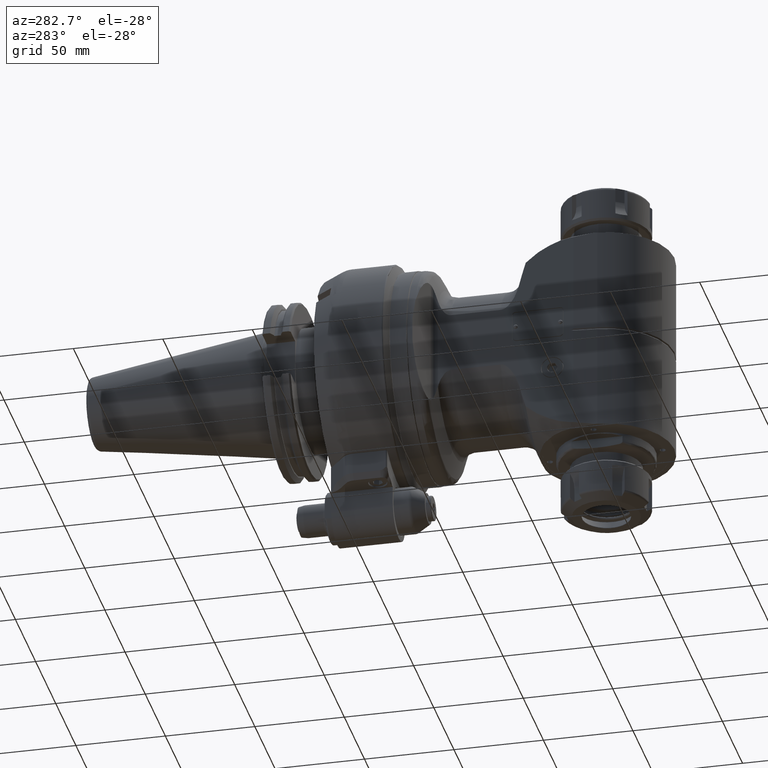
[diagram: clean part render]
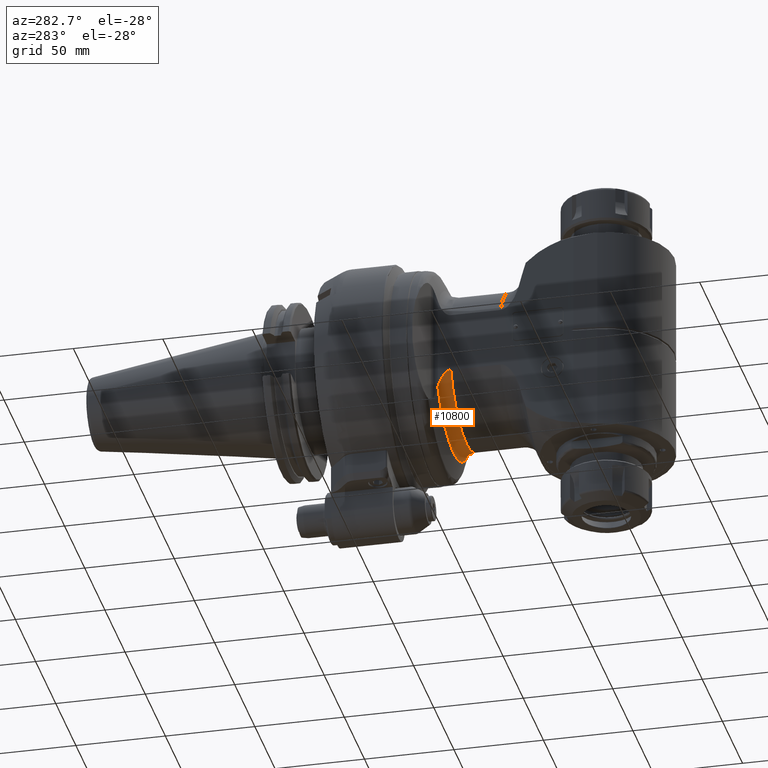
[diagram: same view with one face highlighted and labeled with its STEP entity id]
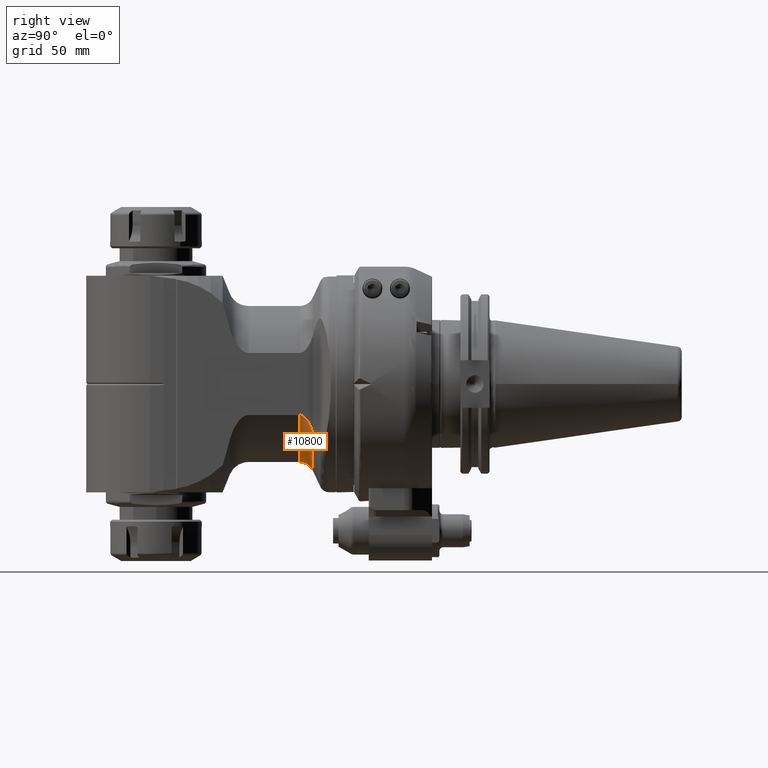
[diagram: same view with one face highlighted and labeled with its STEP entity id]
A machine part, auxiliary view. The second image highlights one B-rep face of the part: STEP entity #10800.
A second angle (right view) of the same face is appended — the face is thin or edge-on in the first view.
In plain terms, the highlighted toroidal blend (fillet) surface has major radius 50.5 mm and minor (blend) radius 8 mm.
Its self-contained STEP definition (entity closure, byte-faithful):
#53=TOROIDAL_SURFACE('',#11569,50.5,8.);
#260=B_SPLINE_CURVE_WITH_KNOTS('',3,(#16283,#16284,#16285,#16286,#16287,
#16288,#16289,#16290,#16291,#16292,#16293,#16294),.UNSPECIFIED.,.F.,.F.,
(4,2,2,2,2,4),(3.19539997434443,3.29920723142052,3.42421947444159,3.81388997291122,
4.08844746216741,4.32068480155229),.UNSPECIFIED.);
#268=B_SPLINE_CURVE_WITH_KNOTS('',3,(#16409,#16410,#16411,#16412,#16413,
#16414,#16415),.UNSPECIFIED.,.F.,.F.,(4,3,4),(-5.24234009397647,-5.20828203270059,
-5.19995195878216),.UNSPECIFIED.);
#272=B_SPLINE_CURVE_WITH_KNOTS('',3,(#16483,#16484,#16485,#16486),
 .UNSPECIFIED.,.F.,.F.,(4,4),(-8.18199533967851,-8.12974714690586),
 .UNSPECIFIED.);
#273=B_SPLINE_CURVE_WITH_KNOTS('',3,(#16489,#16490,#16491,#16492,#16493,
#16494,#16495,#16496,#16497,#16498,#16499,#16500),.UNSPECIFIED.,.F.,.F.,
(4,2,2,2,2,4),(-4.32068480203041,-4.08844746216741,-3.81388997291122,-3.42421947444159,
-3.29920723142052,-3.19539997434443),.UNSPECIFIED.);
#1071=FACE_OUTER_BOUND('',#1751,.T.);
#1751=EDGE_LOOP('',(#7360,#7361,#7362,#7363,#7364,#7365));
#3903=CIRCLE('',#11566,47.11905390607);
#3906=CIRCLE('',#11570,42.5);
#4505=VERTEX_POINT('',#16280);
#4506=VERTEX_POINT('',#16282);
#4521=VERTEX_POINT('',#16391);
#4522=VERTEX_POINT('',#16408);
#4526=VERTEX_POINT('',#16460);
#4529=VERTEX_POINT('',#16487);
#5624=EDGE_CURVE('',#4505,#4506,#260,.T.);
#5645=EDGE_CURVE('',#4521,#4522,#268,.T.);
#5651=EDGE_CURVE('',#4521,#4526,#3903,.T.);
#5655=EDGE_CURVE('',#4506,#4526,#272,.T.);
#5656=EDGE_CURVE('',#4505,#4529,#3906,.T.);
#5657=EDGE_CURVE('',#4522,#4529,#273,.T.);
#7360=ORIENTED_EDGE('',*,*,#5651,.T.);
#7361=ORIENTED_EDGE('',*,*,#5655,.F.);
#7362=ORIENTED_EDGE('',*,*,#5624,.F.);
#7363=ORIENTED_EDGE('',*,*,#5656,.T.);
#7364=ORIENTED_EDGE('',*,*,#5657,.F.);
#7365=ORIENTED_EDGE('',*,*,#5645,.F.);
#10800=ADVANCED_FACE('',(#1071),#53,.F.);
#11566=AXIS2_PLACEMENT_3D('',#16461,#12914,#12915);
#11569=AXIS2_PLACEMENT_3D('',#16482,#12920,#12921);
#11570=AXIS2_PLACEMENT_3D('',#16488,#12922,#12923);
#12914=DIRECTION('center_axis',(1.,0.,0.));
#12915=DIRECTION('ref_axis',(0.,1.,0.));
#12920=DIRECTION('center_axis',(-1.,0.,0.));
#12921=DIRECTION('ref_axis',(0.,1.,0.));
#12922=DIRECTION('center_axis',(-1.,0.,0.));
#12923=DIRECTION('ref_axis',(0.,0.397396370683616,0.917647058823538));
#16280=CARTESIAN_POINT('',(31.79063844602,16.88934575405,39.));
#16282=CARTESIAN_POINT('',(24.7315249201564,25.7534188506498,39.0000000064084));
#16283=CARTESIAN_POINT('Ctrl Pts',(31.79063844602,16.8893457540545,39.));
#16284=CARTESIAN_POINT('Ctrl Pts',(31.4446142557664,16.8893457540545,39.));
#16285=CARTESIAN_POINT('Ctrl Pts',(31.0358042886364,16.9620750928508,39.));
#16286=CARTESIAN_POINT('Ctrl Pts',(30.3137814007137,17.2079257490347,39.));
#16287=CARTESIAN_POINT('Ctrl Pts',(29.8752639425143,17.4482409864561,39.));
#16288=CARTESIAN_POINT('Ctrl Pts',(28.4771803870093,18.4425634126605,39.));
#16289=CARTESIAN_POINT('Ctrl Pts',(27.5326068493982,19.6824304983136,39.));
#16290=CARTESIAN_POINT('Ctrl Pts',(26.3910385300965,21.5795416916554,39.));
#16291=CARTESIAN_POINT('Ctrl Pts',(25.9425135976565,22.4778926599153,39.));
#16292=CARTESIAN_POINT('Ctrl Pts',(25.2344493810686,24.1872808644204,39.));
#16293=CARTESIAN_POINT('Ctrl Pts',(24.9557783074057,24.9902221685875,39.));
#16294=CARTESIAN_POINT('Ctrl Pts',(24.731524724738,25.7534187932291,39.));
#16391=CARTESIAN_POINT('',(24.5401763417976,26.4357331032343,-39.0045794424274));
#16408=CARTESIAN_POINT('',(24.7315249187482,25.7534188553568,-39.0000000064103));
#16409=CARTESIAN_POINT('Ctrl Pts',(24.5401764727383,26.4357328576377,-39.0045792696755));
#16410=CARTESIAN_POINT('Ctrl Pts',(24.5891855582558,26.2518651134451,-39.0022321628778));
#16411=CARTESIAN_POINT('Ctrl Pts',(24.6401139245656,26.0688193770056,-39.0006996473051));
#16412=CARTESIAN_POINT('Ctrl Pts',(24.6926723654761,25.8867946767044,-39.0001888290476));
#16413=CARTESIAN_POINT('Ctrl Pts',(24.7055273455137,25.8422742562317,-39.0000638908191));
#16414=CARTESIAN_POINT('Ctrl Pts',(24.7184796507339,25.7978147813037,-38.999999991874));
#16415=CARTESIAN_POINT('Ctrl Pts',(24.7315246928246,25.7534189018381,-39.0000000000008));
#16460=CARTESIAN_POINT('',(24.5401763417944,26.4357331032501,39.0045794424249));
#16461=CARTESIAN_POINT('Origin',(24.54017614972,0.,0.));
#16482=CARTESIAN_POINT('Origin',(31.79063844602,0.,0.));
#16483=CARTESIAN_POINT('Ctrl Pts',(24.731524694206,25.7534188971367,39.0000000000008));
#16484=CARTESIAN_POINT('Ctrl Pts',(24.6647640450819,25.9806238159991,38.9999999583874));
#16485=CARTESIAN_POINT('Ctrl Pts',(24.6009027023724,26.2079058182575,39.0016710140965));
#16486=CARTESIAN_POINT('Ctrl Pts',(24.540176472733,26.4357328576574,39.0045792696758));
#16487=CARTESIAN_POINT('',(31.79063844602,16.88934575405,-39.));
#16488=CARTESIAN_POINT('Origin',(31.79063844602,0.,0.));
#16489=CARTESIAN_POINT('Ctrl Pts',(24.7315247233529,25.7534187979429,-39.));
#16490=CARTESIAN_POINT('Ctrl Pts',(24.9557783062636,24.9902221718953,-39.));
#16491=CARTESIAN_POINT('Ctrl Pts',(25.2344493804006,24.1872808660331,-39.));
#16492=CARTESIAN_POINT('Ctrl Pts',(25.9425135976565,22.4778926599153,-39.));
#16493=CARTESIAN_POINT('Ctrl Pts',(26.3910385300965,21.5795416916554,-39.));
#16494=CARTESIAN_POINT('Ctrl Pts',(27.5326068493983,19.6824304983136,-39.));
#16495=CARTESIAN_POINT('Ctrl Pts',(28.4771803870093,18.4425634126605,-39.));
#16496=CARTESIAN_POINT('Ctrl Pts',(29.8752639425143,17.4482409864561,-39.));
#16497=CARTESIAN_POINT('Ctrl Pts',(30.3137814007137,17.2079257490347,-39.));
#16498=CARTESIAN_POINT('Ctrl Pts',(31.0358042886364,16.9620750928508,-39.));
#16499=CARTESIAN_POINT('Ctrl Pts',(31.4446142557664,16.8893457540545,-39.));
#16500=CARTESIAN_POINT('Ctrl Pts',(31.79063844602,16.8893457540545,-39.));